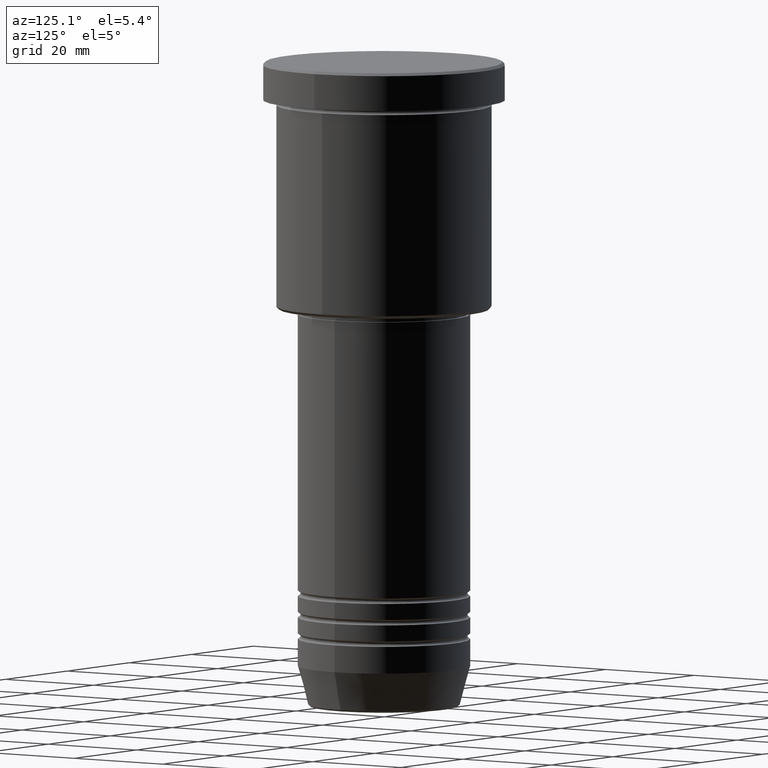
[diagram: clean part render]
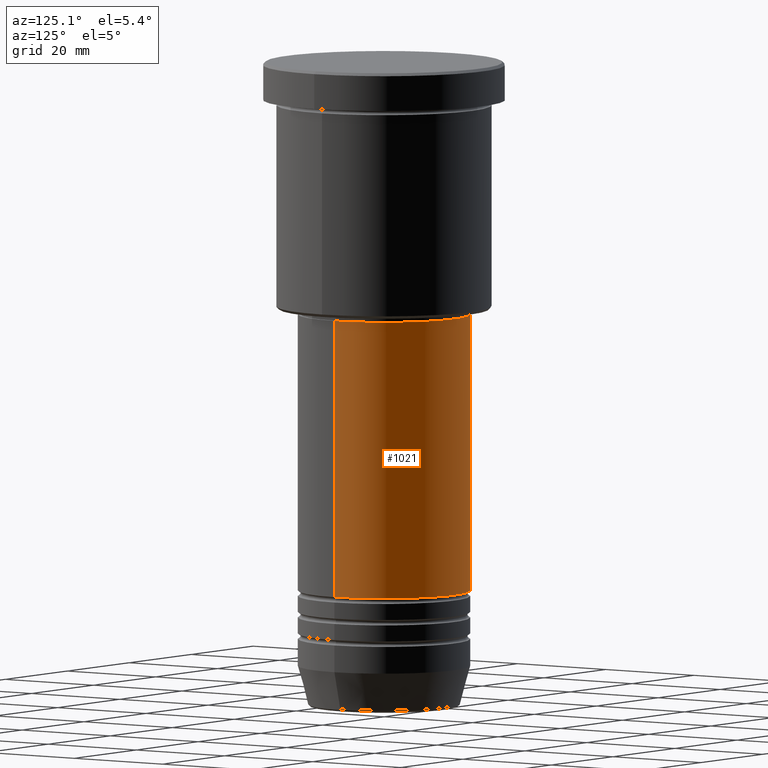
[diagram: same view with one face highlighted and labeled with its STEP entity id]
A machine part, auxiliary view. The second image highlights one B-rep face of the part: STEP entity #1021.
In plain terms, the highlighted cylindrical surface (partial cylindrical patch) has radius 16 mm, axis along (-0, -0, 1).
Its self-contained STEP definition (entity closure, byte-faithful):
#19 = EDGE_LOOP ( 'NONE', ( #436, #890, #442, #1146 ) ) ;
#125 = VERTEX_POINT ( 'NONE', #1044 ) ;
#137 = FACE_OUTER_BOUND ( 'NONE', #19, .T. ) ;
#222 = EDGE_CURVE ( 'NONE', #125, #589, #1015, .T. ) ;
#240 = CYLINDRICAL_SURFACE ( 'NONE', #1094, 16.00000000000000000 ) ;
#261 = LINE ( 'NONE', #978, #561 ) ;
#271 = VERTEX_POINT ( 'NONE', #575 ) ;
#317 = DIRECTION ( 'NONE',  ( -0.000000000000000000, -0.000000000000000000, 1.000000000000000000 ) ) ;
#347 = VERTEX_POINT ( 'NONE', #492 ) ;
#406 = CARTESIAN_POINT ( 'NONE',  ( -16.00000000000000000, 1.959434878635765131E-15, 0.000000000000000000 ) ) ;
#407 = AXIS2_PLACEMENT_3D ( 'NONE', #851, #1140, #975 ) ;
#436 = ORIENTED_EDGE ( 'NONE', *, *, #222, .T. ) ;
#442 = ORIENTED_EDGE ( 'NONE', *, *, #1031, .F. ) ;
#492 = CARTESIAN_POINT ( 'NONE',  ( -16.00000000000000000, 1.959434878635765131E-15, -47.00000000000002132 ) ) ;
#561 = VECTOR ( 'NONE', #1166, 1000.000000000000000 ) ;
#575 = CARTESIAN_POINT ( 'NONE',  ( 16.00000000000000000, 0.000000000000000000, -47.00000000000002132 ) ) ;
#581 = VECTOR ( 'NONE', #1144, 1000.000000000000000 ) ;
#589 = VERTEX_POINT ( 'NONE', #832 ) ;
#593 = CARTESIAN_POINT ( 'NONE',  ( 0.000000000000000000, 0.000000000000000000, -47.00000000000002132 ) ) ;
#665 = EDGE_CURVE ( 'NONE', #589, #347, #1130, .T. ) ;
#746 = AXIS2_PLACEMENT_3D ( 'NONE', #593, #927, #841 ) ;
#832 = CARTESIAN_POINT ( 'NONE',  ( -16.00000000000000000, 1.959434878635765131E-15, -98.49999999999997158 ) ) ;
#841 = DIRECTION ( 'NONE',  ( 1.000000000000000000, 0.000000000000000000, 0.000000000000000000 ) ) ;
#851 = CARTESIAN_POINT ( 'NONE',  ( 0.000000000000000000, 0.000000000000000000, -98.49999999999997158 ) ) ;
#861 = DIRECTION ( 'NONE',  ( 1.000000000000000000, 0.000000000000000000, 0.000000000000000000 ) ) ;
#890 = ORIENTED_EDGE ( 'NONE', *, *, #665, .T. ) ;
#927 = DIRECTION ( 'NONE',  ( -0.000000000000000000, -0.000000000000000000, 1.000000000000000000 ) ) ;
#975 = DIRECTION ( 'NONE',  ( 1.000000000000000000, 0.000000000000000000, 0.000000000000000000 ) ) ;
#978 = CARTESIAN_POINT ( 'NONE',  ( 16.00000000000000000, 0.000000000000000000, 0.000000000000000000 ) ) ;
#1015 = CIRCLE ( 'NONE', #407, 16.00000000000000000 ) ;
#1018 = CIRCLE ( 'NONE', #746, 16.00000000000000000 ) ;
#1021 = ADVANCED_FACE ( 'NONE', ( #137 ), #240, .T. ) ;
#1031 = EDGE_CURVE ( 'NONE', #271, #347, #1018, .T. ) ;
#1044 = CARTESIAN_POINT ( 'NONE',  ( 16.00000000000000000, 0.000000000000000000, -98.49999999999997158 ) ) ;
#1045 = CARTESIAN_POINT ( 'NONE',  ( 0.000000000000000000, 0.000000000000000000, 0.000000000000000000 ) ) ;
#1094 = AXIS2_PLACEMENT_3D ( 'NONE', #1045, #317, #861 ) ;
#1130 = LINE ( 'NONE', #406, #581 ) ;
#1140 = DIRECTION ( 'NONE',  ( -0.000000000000000000, -0.000000000000000000, 1.000000000000000000 ) ) ;
#1144 = DIRECTION ( 'NONE',  ( -0.000000000000000000, -0.000000000000000000, 1.000000000000000000 ) ) ;
#1146 = ORIENTED_EDGE ( 'NONE', *, *, #1163, .F. ) ;
#1163 = EDGE_CURVE ( 'NONE', #125, #271, #261, .T. ) ;
#1166 = DIRECTION ( 'NONE',  ( -0.000000000000000000, -0.000000000000000000, 1.000000000000000000 ) ) ;